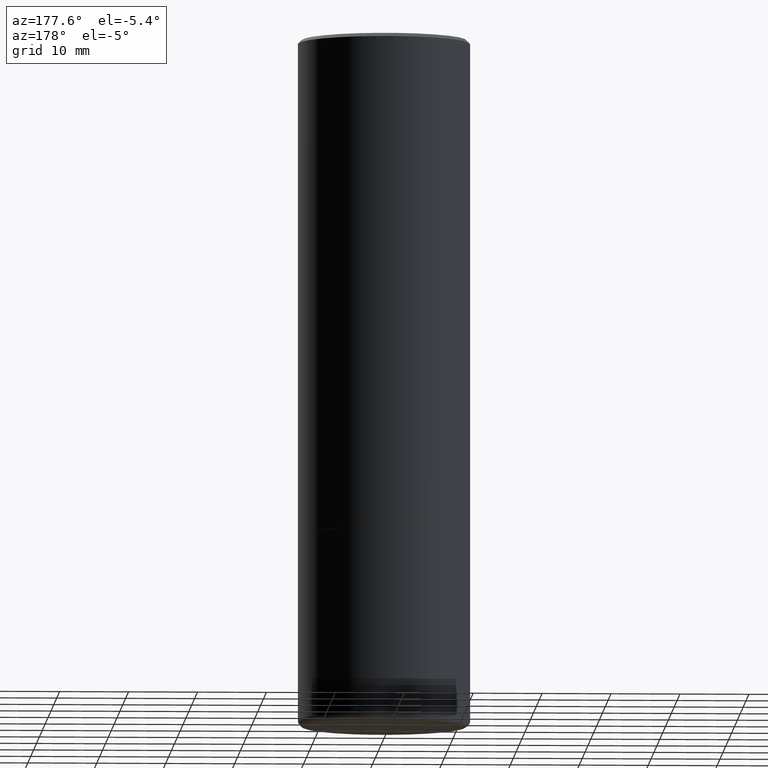
[diagram: clean part render]
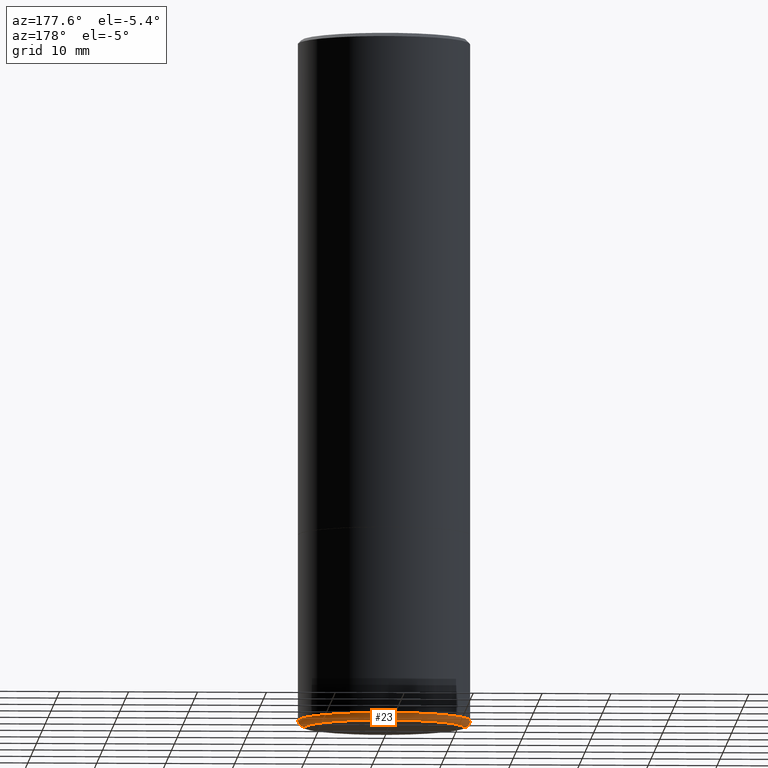
[diagram: same view with one face highlighted and labeled with its STEP entity id]
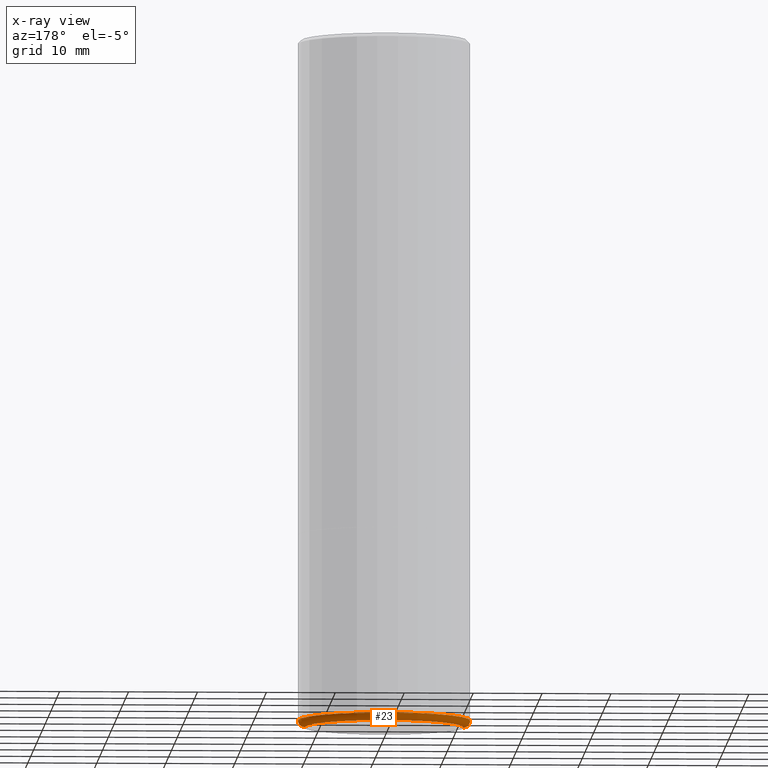
[diagram: x-ray of the same camera — body ghosted, the highlighted face saturated]
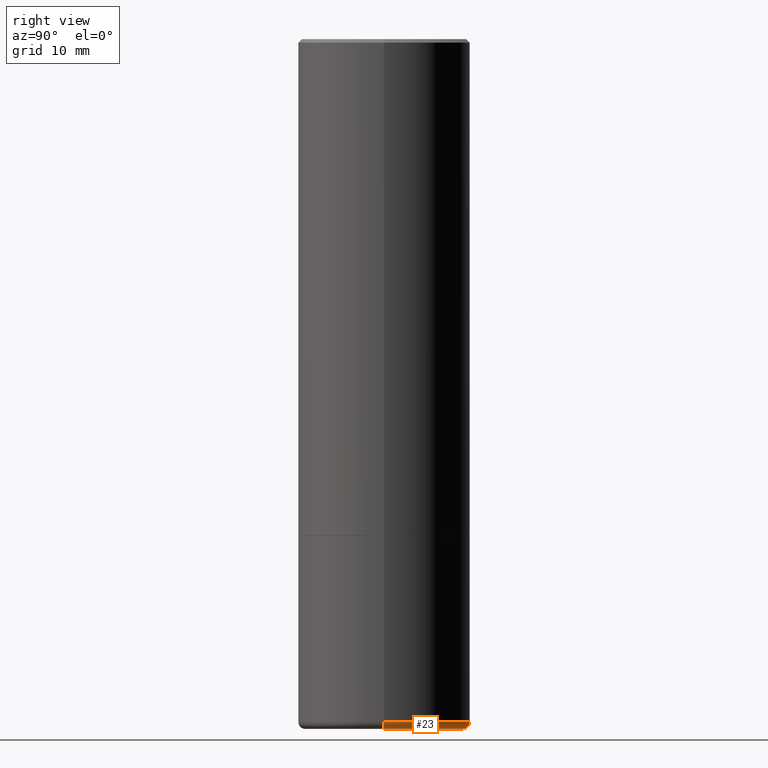
[diagram: same view with one face highlighted and labeled with its STEP entity id]
A machine part, auxiliary view. The second image highlights one B-rep face of the part: STEP entity #23.
The next image is the same camera in x-ray: the body ghosted, the highlighted face saturated — about 0% of this face is hidden behind the body in this view.
A second angle (right view) of the same face is appended — the face is thin or edge-on in the first view.
In plain terms, the highlighted toroidal blend (fillet) surface has major radius 11.4998 mm and minor (blend) radius 1.0008 mm.
Its self-contained STEP definition (entity closure, byte-faithful):
#19 = DIRECTION ( 'NONE',  ( 1.000000000000000000, -6.982962677686265133E-15, 0.000000000000000000 ) ) ;
#23 = ADVANCED_FACE ( 'NONE', ( #330 ), #241, .T. ) ;
#35 = AXIS2_PLACEMENT_3D ( 'NONE', #302, #367, #129 ) ;
#41 = VERTEX_POINT ( 'NONE', #136 ) ;
#44 = VERTEX_POINT ( 'NONE', #228 ) ;
#50 = DIRECTION ( 'NONE',  ( -2.445468806185136597E-29, 3.491481338843145583E-15, 1.000000000000000000 ) ) ;
#51 = CIRCLE ( 'NONE', #79, 0.03939999999999978936 ) ;
#69 = EDGE_CURVE ( 'NONE', #44, #393, #218, .T. ) ;
#79 = AXIS2_PLACEMENT_3D ( 'NONE', #308, #245, #405 ) ;
#80 = DIRECTION ( 'NONE',  ( 1.000000000000000000, -6.982962677686265922E-15, 0.000000000000000000 ) ) ;
#116 = ORIENTED_EDGE ( 'NONE', *, *, #205, .F. ) ;
#121 = VERTEX_POINT ( 'NONE', #141 ) ;
#129 = DIRECTION ( 'NONE',  ( 1.000000000000000000, -6.982962677686265133E-15, 4.883557194083112340E-29 ) ) ;
#136 = CARTESIAN_POINT ( 'NONE',  ( 0.4921499999999998098, -1.704506274809833840E-14, -3.897600000000000176 ) ) ;
#139 = ORIENTED_EDGE ( 'NONE', *, *, #69, .T. ) ;
#141 = CARTESIAN_POINT ( 'NONE',  ( 0.4527499999999999858, -1.690749838334791918E-14, -3.936999999999999389 ) ) ;
#144 = AXIS2_PLACEMENT_3D ( 'NONE', #406, #306, #80 ) ;
#173 = CARTESIAN_POINT ( 'NONE',  ( -0.4527499999999999858, -1.039141543012119071E-14, -3.897600000000000176 ) ) ;
#199 = DIRECTION ( 'NONE',  ( 7.105427357601001859E-15, 1.000000000000000000, -3.491481338843145583E-15 ) ) ;
#201 = EDGE_CURVE ( 'NONE', #121, #41, #51, .T. ) ;
#205 = EDGE_CURVE ( 'NONE', #41, #393, #355, .T. ) ;
#218 = CIRCLE ( 'NONE', #387, 0.03939999999999978936 ) ;
#219 = CARTESIAN_POINT ( 'NONE',  ( -0.4921499999999998098, -1.011146159223171209E-14, -3.897600000000000176 ) ) ;
#226 = EDGE_LOOP ( 'NONE', ( #363, #139, #116, #361 ) ) ;
#228 = CARTESIAN_POINT ( 'NONE',  ( -0.4527499999999999858, -1.032022069355166022E-14, -3.936999999999999389 ) ) ;
#241 = TOROIDAL_SURFACE ( 'NONE', #35, 0.4527499999999999858, 0.03939999999999978936 ) ;
#245 = DIRECTION ( 'NONE',  ( -6.982962677686266711E-15, -1.000000000000000000, 3.491481338843145583E-15 ) ) ;
#250 = EDGE_CURVE ( 'NONE', #121, #44, #410, .T. ) ;
#279 = CARTESIAN_POINT ( 'NONE',  ( 9.627810689950881427E-29, -1.374596203102546184E-14, -3.936999999999999389 ) ) ;
#287 = AXIS2_PLACEMENT_3D ( 'NONE', #279, #50, #19 ) ;
#302 = CARTESIAN_POINT ( 'NONE',  ( 9.531459218987189074E-29, -1.360839766627504420E-14, -3.897600000000000176 ) ) ;
#306 = DIRECTION ( 'NONE',  ( -2.445468806185136597E-29, 3.491481338843145583E-15, 1.000000000000000000 ) ) ;
#308 = CARTESIAN_POINT ( 'NONE',  ( 0.4527499999999999858, -1.676993401859749997E-14, -3.897600000000000176 ) ) ;
#326 = DIRECTION ( 'NONE',  ( -1.000000000000000000, 7.105427357601014480E-15, 0.000000000000000000 ) ) ;
#330 = FACE_OUTER_BOUND ( 'NONE', #226, .T. ) ;
#355 = CIRCLE ( 'NONE', #144, 0.4921499999999999764 ) ;
#361 = ORIENTED_EDGE ( 'NONE', *, *, #201, .F. ) ;
#363 = ORIENTED_EDGE ( 'NONE', *, *, #250, .T. ) ;
#367 = DIRECTION ( 'NONE',  ( -2.445468806185136597E-29, 3.491481338843145583E-15, 1.000000000000000000 ) ) ;
#387 = AXIS2_PLACEMENT_3D ( 'NONE', #173, #199, #326 ) ;
#393 = VERTEX_POINT ( 'NONE', #219 ) ;
#405 = DIRECTION ( 'NONE',  ( 1.000000000000000000, -6.982962677686266711E-15, 0.000000000000000000 ) ) ;
#406 = CARTESIAN_POINT ( 'NONE',  ( 9.531459218987189074E-29, -1.360839766627504420E-14, -3.897600000000000176 ) ) ;
#410 = CIRCLE ( 'NONE', #287, 0.4527499999999999858 ) ;